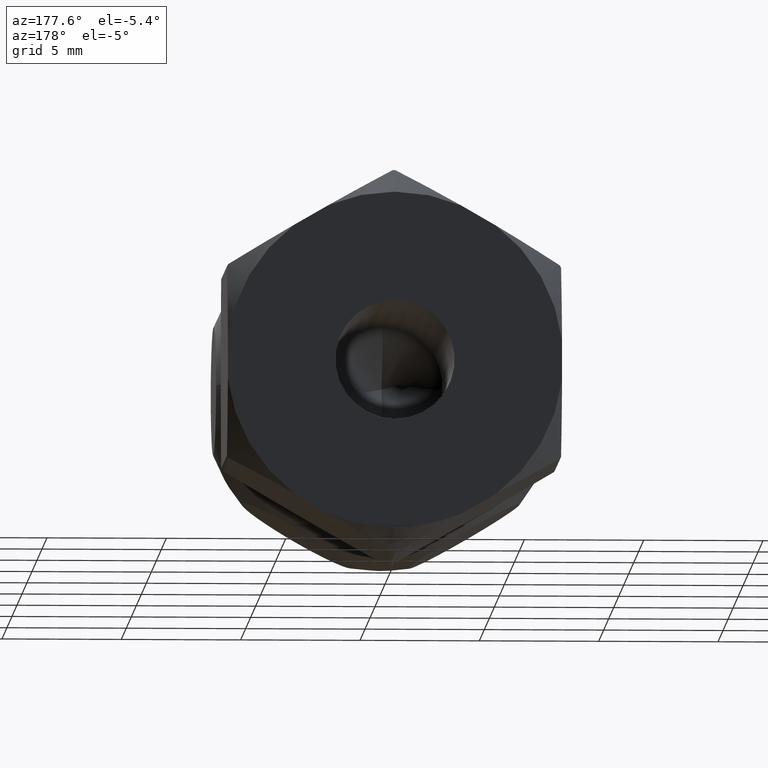
[diagram: clean part render]
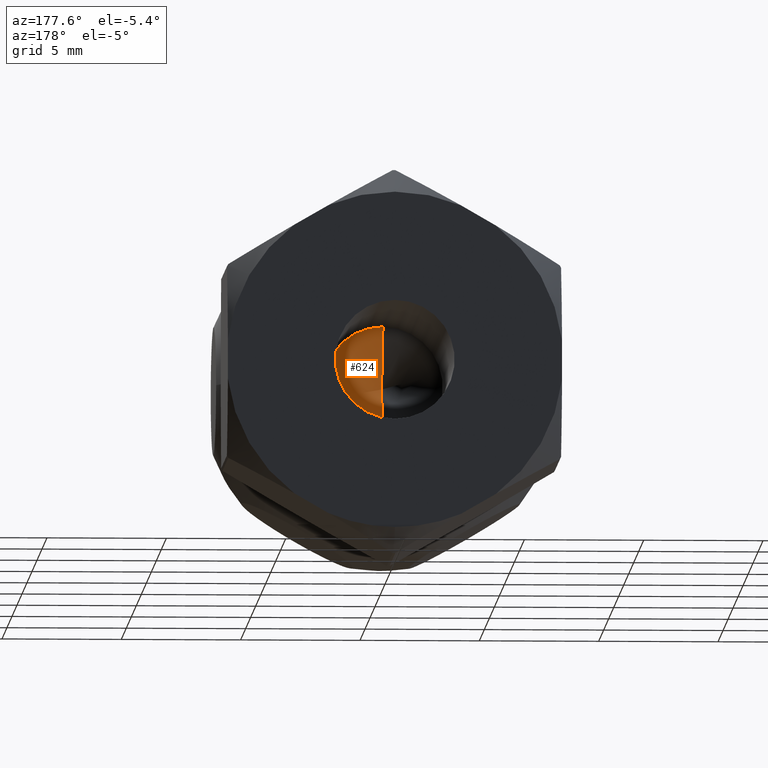
[diagram: same view with one face highlighted and labeled with its STEP entity id]
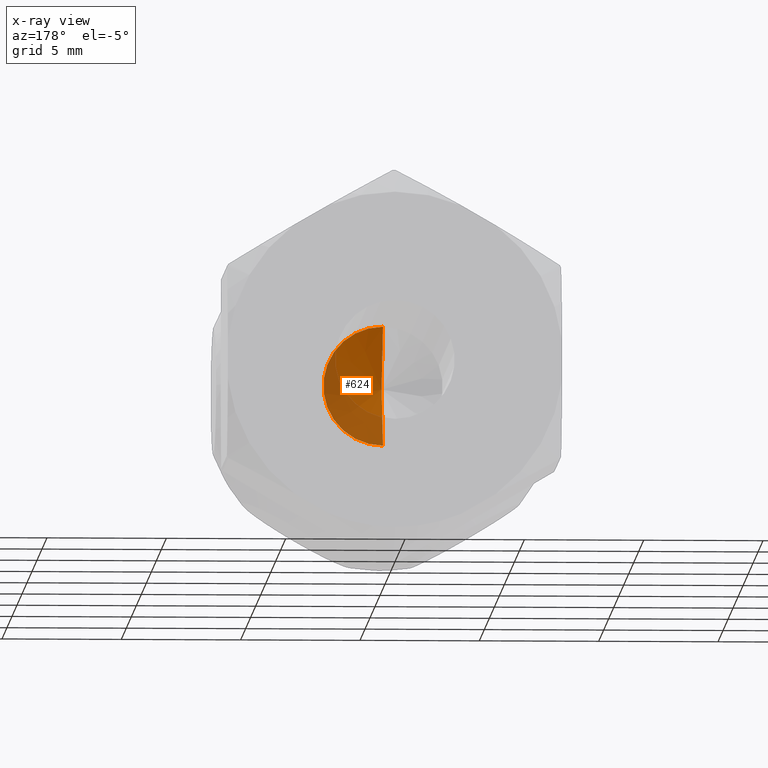
[diagram: x-ray of the same camera — body ghosted, the highlighted face saturated]
A machine part, auxiliary view. The second image highlights one B-rep face of the part: STEP entity #624.
The next image is the same camera in x-ray: the body ghosted, the highlighted face saturated — about 42% of this face is hidden behind the body in this view.
In plain terms, the highlighted conical surface has half-angle 60 deg.
Its self-contained STEP definition (entity closure, byte-faithful):
#58 = DIRECTION ( 'NONE',  ( 0.0000000000000000000, 1.000000000000000000, 0.0000000000000000000 ) ) ;
#140 = AXIS2_PLACEMENT_3D ( 'NONE', #738, #973, #145 ) ;
#145 = DIRECTION ( 'NONE',  ( 0.0000000000000000000, 0.0000000000000000000, 1.000000000000000000 ) ) ;
#188 = ORIENTED_EDGE ( 'NONE', *, *, #1437, .T. ) ;
#200 = DIRECTION ( 'NONE',  ( 0.0000000000000000000, 0.5000000000000001100, 0.8660254037844386000 ) ) ;
#203 = EDGE_CURVE ( 'NONE', #1228, #1031, #1394, .T. ) ;
#400 = CARTESIAN_POINT ( 'NONE',  ( 0.0000000000000000000, -12.00000000000000000, 2.499999999999964900 ) ) ;
#418 = EDGE_CURVE ( 'NONE', #1225, #1031, #839, .T. ) ;
#547 = DIRECTION ( 'NONE',  ( 0.0000000000000000000, 0.0000000000000000000, 1.000000000000000000 ) ) ;
#569 = CARTESIAN_POINT ( 'NONE',  ( 0.0000000000000000000, -12.00000000000001100, 2.499999999999946700 ) ) ;
#599 = CONICAL_SURFACE ( 'NONE', #140, 2.499999999999946700, 1.047197551196597600 ) ;
#624 = ADVANCED_FACE ( 'NONE', ( #1178 ), #599, .F. ) ;
#738 = CARTESIAN_POINT ( 'NONE',  ( 0.0000000000000000000, -12.00000000000001100, 0.0000000000000000000 ) ) ;
#759 = AXIS2_PLACEMENT_3D ( 'NONE', #1126, #58, #547 ) ;
#839 = CIRCLE ( 'NONE', #759, 2.500000000000000900 ) ;
#858 = LINE ( 'NONE', #569, #1561 ) ;
#888 = CARTESIAN_POINT ( 'NONE',  ( 0.0000000000000000000, -13.44337567297404600, 0.0000000000000000000 ) ) ;
#964 = ORIENTED_EDGE ( 'NONE', *, *, #203, .F. ) ;
#973 = DIRECTION ( 'NONE',  ( -0.0000000000000000000, 1.000000000000000000, 0.0000000000000000000 ) ) ;
#1031 = VERTEX_POINT ( 'NONE', #1247 ) ;
#1071 = DIRECTION ( 'NONE',  ( 1.060575238724906800E-016, 0.5000000000000001100, -0.8660254037844386000 ) ) ;
#1126 = CARTESIAN_POINT ( 'NONE',  ( 0.0000000000000000000, -12.00000000000000000, 0.0000000000000000000 ) ) ;
#1178 = FACE_OUTER_BOUND ( 'NONE', #1229, .T. ) ;
#1225 = VERTEX_POINT ( 'NONE', #400 ) ;
#1228 = VERTEX_POINT ( 'NONE', #888 ) ;
#1229 = EDGE_LOOP ( 'NONE', ( #964, #188, #1537 ) ) ;
#1247 = CARTESIAN_POINT ( 'NONE',  ( 3.061616997868340200E-016, -12.00000000000000000, -2.499999999999964900 ) ) ;
#1311 = CARTESIAN_POINT ( 'NONE',  ( 3.061616997868318100E-016, -12.00000000000001100, -2.499999999999946700 ) ) ;
#1338 = VECTOR ( 'NONE', #1071, 1000.000000000000000 ) ;
#1394 = LINE ( 'NONE', #1311, #1338 ) ;
#1437 = EDGE_CURVE ( 'NONE', #1228, #1225, #858, .T. ) ;
#1537 = ORIENTED_EDGE ( 'NONE', *, *, #418, .T. ) ;
#1561 = VECTOR ( 'NONE', #200, 1000.000000000000000 ) ;